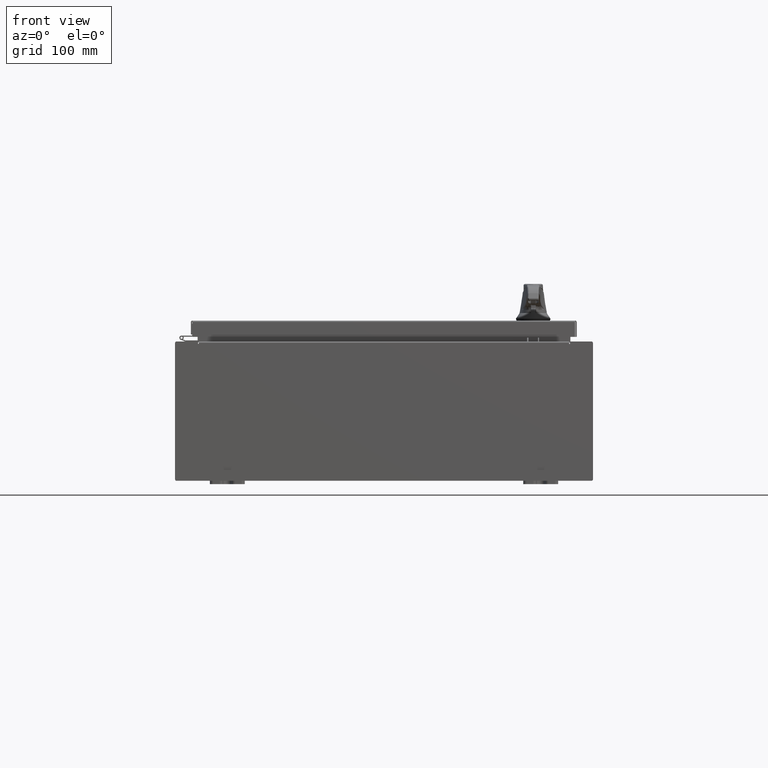
[diagram: clean part render]
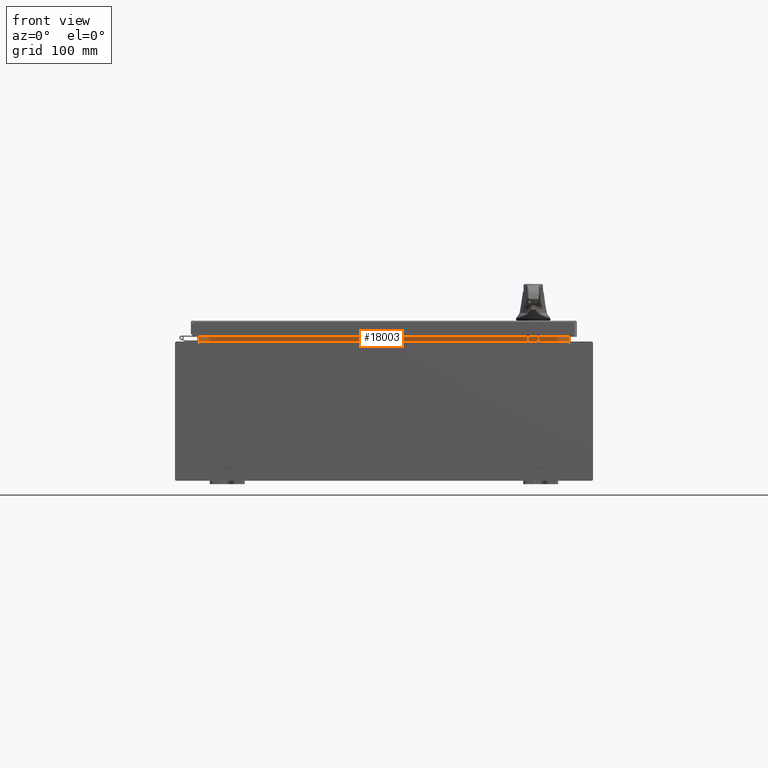
[diagram: same view with one face highlighted and labeled with its STEP entity id]
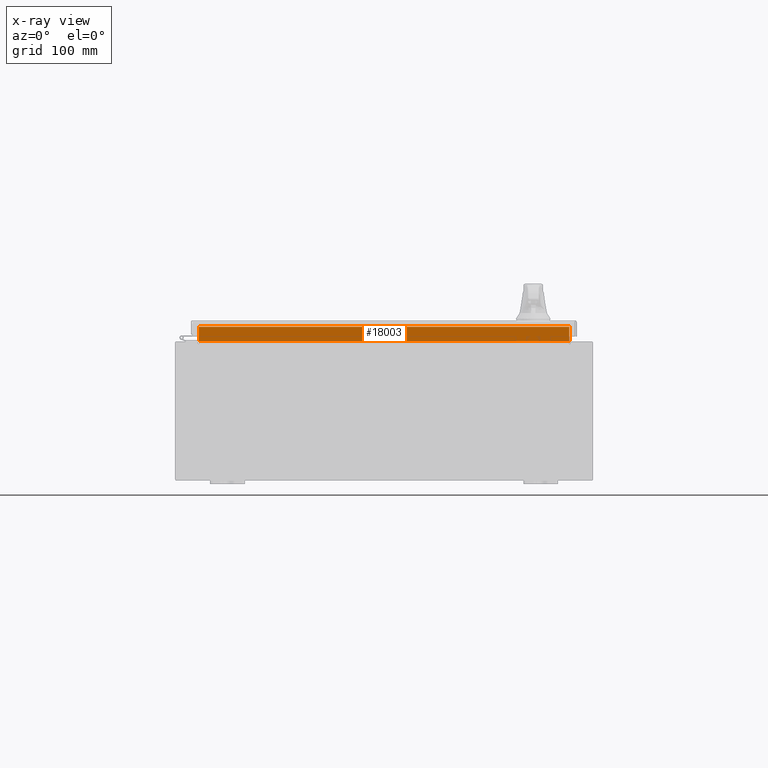
[diagram: x-ray of the same camera — body ghosted, the highlighted face saturated]
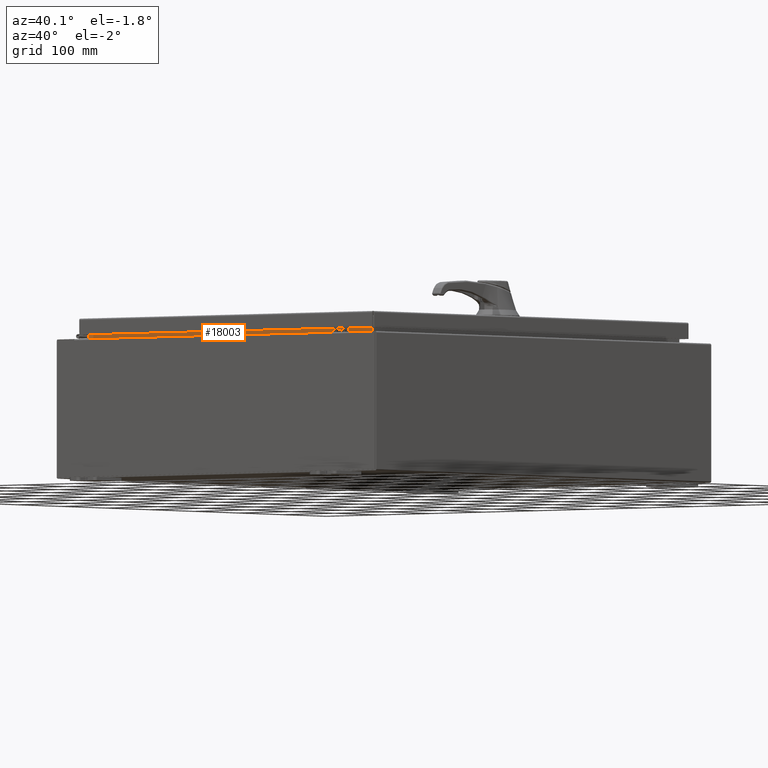
[diagram: same view with one face highlighted and labeled with its STEP entity id]
A machine part, front view. The second image highlights one B-rep face of the part: STEP entity #18003.
The next image is the same camera in x-ray: the body ghosted, the highlighted face saturated — about 0% of this face is hidden behind the body in this view.
A second angle (auxiliary view) of the same face is appended — the face is thin or edge-on in the first view.
In plain terms, the highlighted planar face has unit normal (0, -1, 0).
Its self-contained STEP definition (entity closure, byte-faithful):
#3405 = LINE ( 'NONE', #34408, #96842 ) ;
#6277 = FACE_OUTER_BOUND ( 'NONE', #30661, .T. ) ;
#7537 = AXIS2_PLACEMENT_3D ( 'NONE', #22218, #85932, #31694 ) ;
#9969 = DIRECTION ( 'NONE',  ( -1.000000000000000000, -0.0000000000000000000, -0.0000000000000000000 ) ) ;
#13402 = DIRECTION ( 'NONE',  ( 1.000000000000000000, 0.0000000000000000000, -2.568202152506545800E-017 ) ) ;
#15109 = ORIENTED_EDGE ( 'NONE', *, *, #35351, .F. ) ;
#18003 = ADVANCED_FACE ( 'NONE', ( #6277 ), #31323, .T. ) ;
#22218 = CARTESIAN_POINT ( 'NONE',  ( 0.0000000000000000000, -1.300299999999999800, 0.0000000000000000000 ) ) ;
#24355 = LINE ( 'NONE', #103647, #69725 ) ;
#25317 = DIRECTION ( 'NONE',  ( -0.0000000000000000000, -0.0000000000000000000, -1.000000000000000000 ) ) ;
#30661 = EDGE_LOOP ( 'NONE', ( #84801, #15109, #80672, #84606 ) ) ;
#31203 = VECTOR ( 'NONE', #78653, 39.37007874015748100 ) ;
#31323 = PLANE ( 'NONE',  #7537 ) ;
#31694 = DIRECTION ( 'NONE',  ( 0.0000000000000000000, -0.0000000000000000000, 1.000000000000000000 ) ) ;
#32691 = CARTESIAN_POINT ( 'NONE',  ( 10.63720000000000200, -1.300299999999999800, 4.925300000000004500 ) ) ;
#34408 = CARTESIAN_POINT ( 'NONE',  ( -10.63720000000000200, -1.300299999999999800, 4.000000000000004400 ) ) ;
#35351 = EDGE_CURVE ( 'NONE', #82302, #107997, #95007, .T. ) ;
#44875 = EDGE_CURVE ( 'NONE', #61856, #85871, #24355, .T. ) ;
#61856 = VERTEX_POINT ( 'NONE', #91984 ) ;
#69210 = EDGE_CURVE ( 'NONE', #107997, #61856, #3405, .T. ) ;
#69725 = VECTOR ( 'NONE', #13402, 39.37007874015748100 ) ;
#73332 = CARTESIAN_POINT ( 'NONE',  ( 10.63720000000000200, -1.300299999999999300, 4.837600000000003700 ) ) ;
#73763 = VECTOR ( 'NONE', #9969, 39.37007874015748100 ) ;
#74354 = CARTESIAN_POINT ( 'NONE',  ( -10.63720000000000200, -1.300299999999999300, 4.837600000000003700 ) ) ;
#78653 = DIRECTION ( 'NONE',  ( -0.0000000000000000000, -0.0000000000000000000, 1.000000000000000000 ) ) ;
#80672 = ORIENTED_EDGE ( 'NONE', *, *, #114945, .F. ) ;
#82302 = VERTEX_POINT ( 'NONE', #105868 ) ;
#83435 = CARTESIAN_POINT ( 'NONE',  ( 10.63720000000000400, -1.300299999999999800, 4.013000000000003500 ) ) ;
#84606 = ORIENTED_EDGE ( 'NONE', *, *, #44875, .F. ) ;
#84801 = ORIENTED_EDGE ( 'NONE', *, *, #69210, .F. ) ;
#85871 = VERTEX_POINT ( 'NONE', #83435 ) ;
#85932 = DIRECTION ( 'NONE',  ( 0.0000000000000000000, 1.000000000000000000, 0.0000000000000000000 ) ) ;
#91984 = CARTESIAN_POINT ( 'NONE',  ( -10.63720000000000400, -1.300299999999999800, 4.013000000000003500 ) ) ;
#95007 = LINE ( 'NONE', #73332, #73763 ) ;
#96842 = VECTOR ( 'NONE', #25317, 39.37007874015748100 ) ;
#103461 = LINE ( 'NONE', #32691, #31203 ) ;
#103647 = CARTESIAN_POINT ( 'NONE',  ( -10.63720000000000200, -1.300299999999999800, 4.013000000000003500 ) ) ;
#105868 = CARTESIAN_POINT ( 'NONE',  ( 10.63720000000000200, -1.300299999999999800, 4.837600000000003700 ) ) ;
#107997 = VERTEX_POINT ( 'NONE', #74354 ) ;
#114945 = EDGE_CURVE ( 'NONE', #85871, #82302, #103461, .T. ) ;